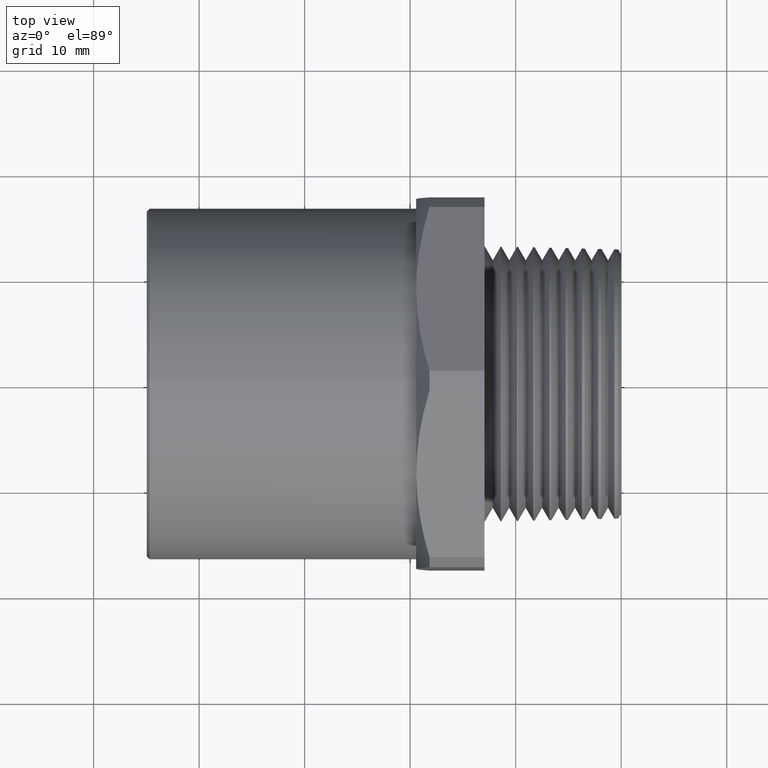
[diagram: clean part render]
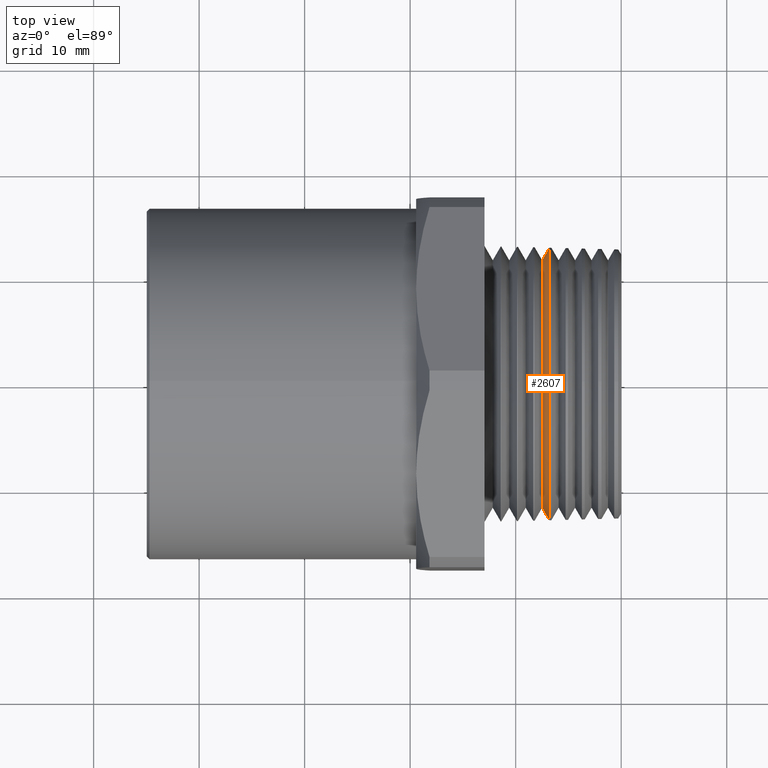
[diagram: same view with one face highlighted and labeled with its STEP entity id]
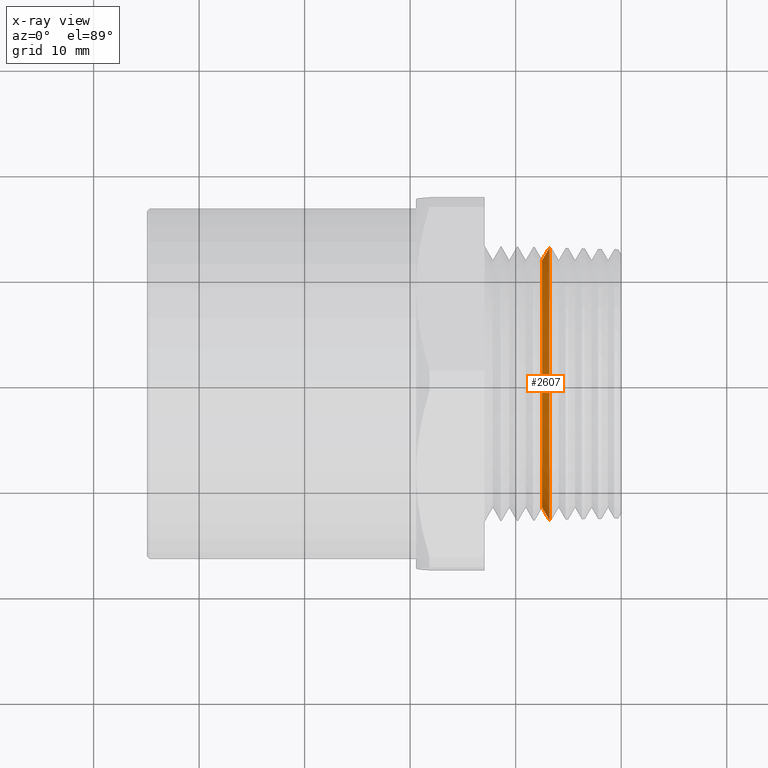
[diagram: x-ray of the same camera — body ghosted, the highlighted face saturated]
A machine part, top view. The second image highlights one B-rep face of the part: STEP entity #2607.
The next image is the same camera in x-ray: the body ghosted, the highlighted face saturated — about 0% of this face is hidden behind the body in this view.
In plain terms, the highlighted conical surface has half-angle 60 deg.
Its self-contained STEP definition (entity closure, byte-faithful):
#1799 = CARTESIAN_POINT ( 'NONE',  ( -0.2677759503999576100, 0.5086571400349985100, 0.0000000000000000000 ) ) ;
#1851 = DIRECTION ( 'NONE',  ( 6.713382597647884500E-017, 1.000000000000000000, 0.0000000000000000000 ) ) ;
#1852 = DIRECTION ( 'NONE',  ( 1.000000000000000000, -3.789761643835506200E-017, 0.0000000000000000000 ) ) ;
#1853 = CARTESIAN_POINT ( 'NONE',  ( -0.2677759503999576100, 0.0000000000000000000, 0.0000000000000000000 ) ) ;
#1854 = AXIS2_PLACEMENT_3D ( 'NONE', #1853, #1852, #1851 ) ;
#1855 = CIRCLE ( 'NONE', #1854, 0.5086571400350025100 ) ;
#1958 = CARTESIAN_POINT ( 'NONE',  ( -0.2677759503999576600, -0.5086571400349987300, 6.229253384073081000E-017 ) ) ;
#1982 = DIRECTION ( 'NONE',  ( 0.4999999999999945600, 0.8660254037844418200, 0.0000000000000000000 ) ) ;
#1983 = VECTOR ( 'NONE', #1982, 39.37007874015748100 ) ;
#1984 = CARTESIAN_POINT ( 'NONE',  ( -0.2949140921030085100, 0.4616524997823099300, 0.0000000000000000000 ) ) ;
#1985 = LINE ( 'NONE', #1984, #1983 ) ;
#1991 = DIRECTION ( 'NONE',  ( 6.713382597647884500E-017, 1.000000000000000000, 0.0000000000000000000 ) ) ;
#1992 = DIRECTION ( 'NONE',  ( 1.000000000000000000, -3.789761643835506200E-017, 0.0000000000000000000 ) ) ;
#1993 = CARTESIAN_POINT ( 'NONE',  ( -0.2677759503999576100, 0.0000000000000000000, 0.0000000000000000000 ) ) ;
#1994 = AXIS2_PLACEMENT_3D ( 'NONE', #1993, #1992, #1991 ) ;
#1995 = CIRCLE ( 'NONE', #1994, 0.5086571400350025100 ) ;
#1996 = CARTESIAN_POINT ( 'NONE',  ( -0.2677759503999576100, 0.0000000000000000000, 0.5086571400350025100 ) ) ;
#2012 = FACE_OUTER_BOUND ( 'NONE', #2613, .T. ) ;
#2015 = DIRECTION ( 'NONE',  ( 7.396927328868718800E-017, 1.000000000000000000, 0.0000000000000000000 ) ) ;
#2016 = DIRECTION ( 'NONE',  ( 1.000000000000000000, -3.789761643835506200E-017, 0.0000000000000000000 ) ) ;
#2017 = CARTESIAN_POINT ( 'NONE',  ( -0.2949140921030085100, -4.658719610180466000E-017, 0.0000000000000000000 ) ) ;
#2018 = AXIS2_PLACEMENT_3D ( 'NONE', #2017, #2016, #2015 ) ;
#2019 = CIRCLE ( 'NONE', #2018, 0.4616524997823099900 ) ;
#2056 = CARTESIAN_POINT ( 'NONE',  ( -0.2949140921030085600, -0.4616524997823100400, 0.0000000000000000000 ) ) ;
#2061 = DIRECTION ( 'NONE',  ( 0.4999999999999945000, -0.8660254037844419300, 1.060575238724910900E-016 ) ) ;
#2062 = VECTOR ( 'NONE', #2061, 39.37007874015748900 ) ;
#2063 = CARTESIAN_POINT ( 'NONE',  ( -0.2949140921030085600, -0.4616524997823100400, 5.653612561767801300E-017 ) ) ;
#2064 = LINE ( 'NONE', #2063, #2062 ) ;
#2065 = CARTESIAN_POINT ( 'NONE',  ( -0.2949140921030085100, 0.4616524997823099300, 5.950269361750917300E-017 ) ) ;
#2072 = DIRECTION ( 'NONE',  ( 7.396927328868718800E-017, 1.000000000000000000, 0.0000000000000000000 ) ) ;
#2073 = DIRECTION ( 'NONE',  ( 1.000000000000000000, -3.789761643835506200E-017, 0.0000000000000000000 ) ) ;
#2074 = AXIS2_PLACEMENT_3D ( 'NONE', #2076, #2073, #2072 ) ;
#2075 = CONICAL_SURFACE ( 'NONE', #2074, 0.4616524997823099900, 1.047197551196604100 ) ;
#2076 = CARTESIAN_POINT ( 'NONE',  ( -0.2949140921030085100, -4.658719610180466000E-017, 0.0000000000000000000 ) ) ;
#2494 = VERTEX_POINT ( 'NONE', #1799 ) ;
#2499 = EDGE_CURVE ( 'NONE', #2494, #2577, #1855, .T. ) ;
#2570 = VERTEX_POINT ( 'NONE', #1958 ) ;
#2577 = VERTEX_POINT ( 'NONE', #1996 ) ;
#2580 = EDGE_CURVE ( 'NONE', #2577, #2570, #1995, .T. ) ;
#2586 = EDGE_CURVE ( 'NONE', #2616, #2494, #1985, .T. ) ;
#2594 = ORIENTED_EDGE ( 'NONE', *, *, #2586, .F. ) ;
#2604 = EDGE_CURVE ( 'NONE', #2616, #2621, #2019, .T. ) ;
#2607 = ADVANCED_FACE ( 'NONE', ( #2012 ), #2075, .T. ) ;
#2610 = ORIENTED_EDGE ( 'NONE', *, *, #2499, .F. ) ;
#2613 = EDGE_LOOP ( 'NONE', ( #2630, #2617, #2615, #2610, #2594 ) ) ;
#2615 = ORIENTED_EDGE ( 'NONE', *, *, #2580, .F. ) ;
#2616 = VERTEX_POINT ( 'NONE', #2065 ) ;
#2617 = ORIENTED_EDGE ( 'NONE', *, *, #2619, .T. ) ;
#2619 = EDGE_CURVE ( 'NONE', #2621, #2570, #2064, .T. ) ;
#2621 = VERTEX_POINT ( 'NONE', #2056 ) ;
#2630 = ORIENTED_EDGE ( 'NONE', *, *, #2604, .T. ) ;